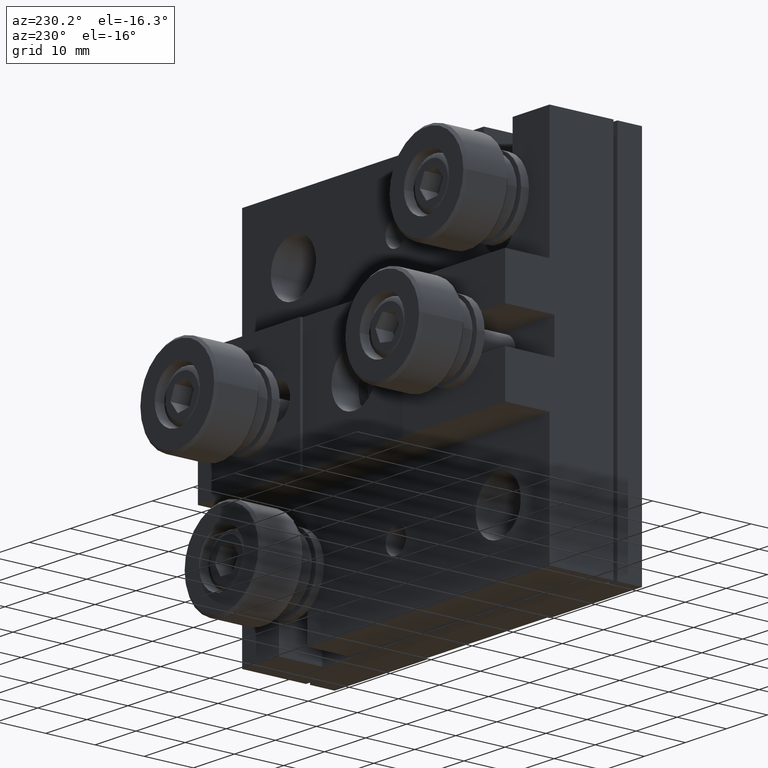
[diagram: clean part render]
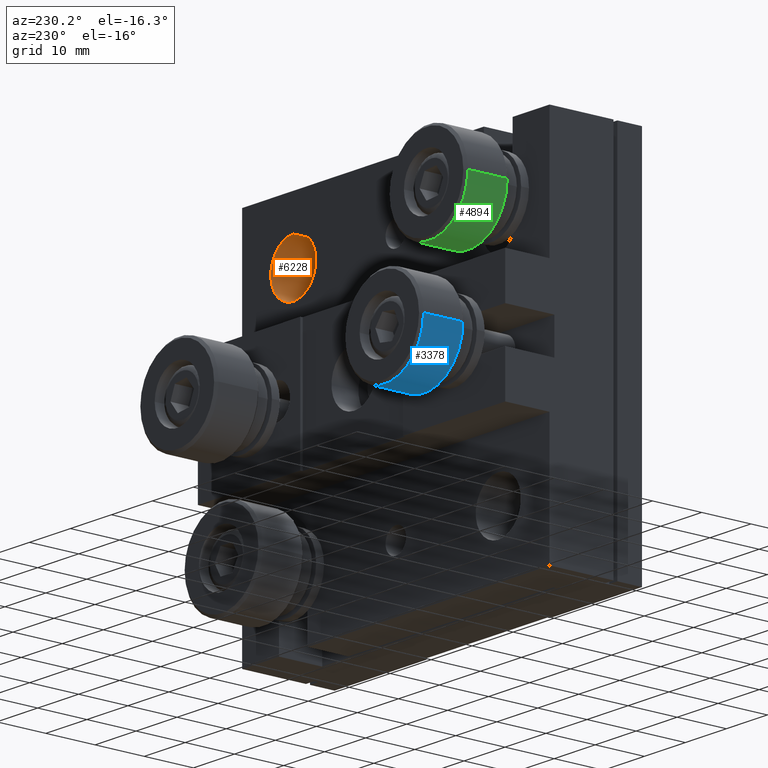
[diagram: same view with three faces highlighted in distinct colors, each labeled with its STEP entity id]
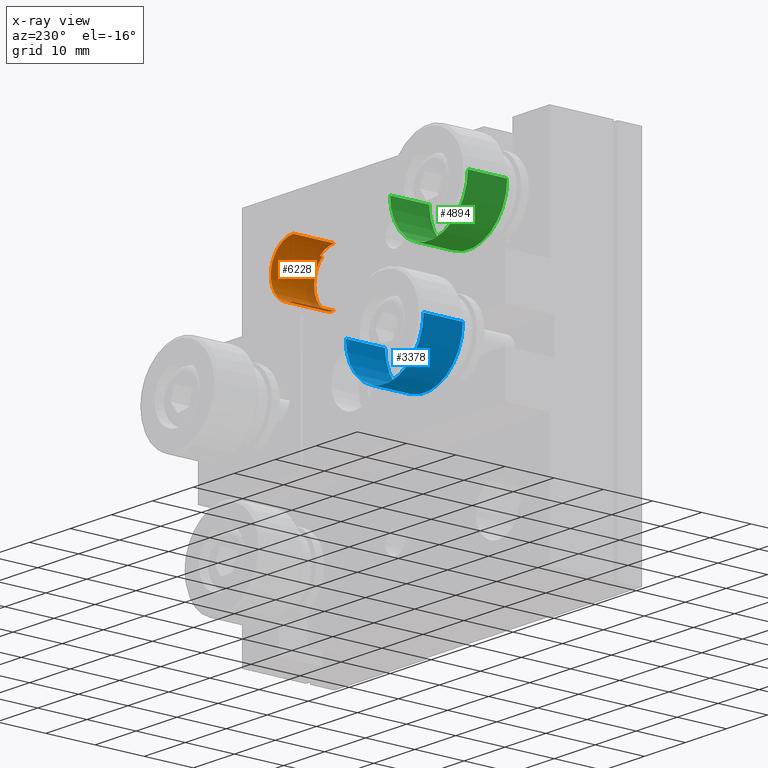
[diagram: x-ray of the same camera — body ghosted, the three highlighted faces saturated]
A machine part, auxiliary view with three faces highlighted in distinct colors.
The next image is the same camera in x-ray (body ghosted, the three faces saturated) — at least one of them is partly hidden behind the body in this view.
Their STEP definitions:

[orange] entity #6228 — the highlighted cylindrical surface (edge-blend (fillet) strip) has radius 5.5 mm, axis along (-0, 1, -0).
#6 = DIRECTION ( 'NONE',  ( -0.0000000000000000000, 1.000000000000000000, -0.0000000000000000000 ) ) ;
#10 = ORIENTED_EDGE ( 'NONE', *, *, #3842, .T. ) ;
#192 = CARTESIAN_POINT ( 'NONE',  ( 28.38646684831964600, 5.621071752951860600, 29.24264068711933000 ) ) ;
#218 = DIRECTION ( 'NONE',  ( -0.0000000000000000000, 1.000000000000000000, -0.0000000000000000000 ) ) ;
#275 = AXIS2_PLACEMENT_3D ( 'NONE', #1153, #6, #6223 ) ;
#1065 = EDGE_CURVE ( 'NONE', #5426, #2127, #4453, .T. ) ;
#1123 = EDGE_CURVE ( 'NONE', #2231, #3884, #3856, .T. ) ;
#1153 = CARTESIAN_POINT ( 'NONE',  ( 24.88646684831970600, 5.621071752951860600, 25.00000000000000000 ) ) ;
#1210 = DIRECTION ( 'NONE',  ( 0.0000000000000000000, 0.0000000000000000000, -1.000000000000000000 ) ) ;
#1263 = CARTESIAN_POINT ( 'NONE',  ( 24.88646684831970600, 5.621071752951860600, 19.50000000000000400 ) ) ;
#1293 = VERTEX_POINT ( 'NONE', #3171 ) ;
#1351 = DIRECTION ( 'NONE',  ( -0.0000000000000000000, 1.000000000000000000, -0.0000000000000000000 ) ) ;
#1563 = AXIS2_PLACEMENT_3D ( 'NONE', #3737, #5743, #1210 ) ;
#1742 = DIRECTION ( 'NONE',  ( 0.0000000000000000000, -1.000000000000000000, 0.0000000000000000000 ) ) ;
#1764 = EDGE_CURVE ( 'NONE', #4466, #2231, #3212, .T. ) ;
#1780 = ORIENTED_EDGE ( 'NONE', *, *, #2619, .F. ) ;
#1948 = LINE ( 'NONE', #1263, #2996 ) ;
#1995 = CARTESIAN_POINT ( 'NONE',  ( 28.38646684831963900, 5.621071752951860600, 20.75735931288066600 ) ) ;
#2096 = ORIENTED_EDGE ( 'NONE', *, *, #1764, .F. ) ;
#2127 = VERTEX_POINT ( 'NONE', #4060 ) ;
#2171 = CARTESIAN_POINT ( 'NONE',  ( 24.88646684831970600, -2.678928247048137900, 25.00000000000000000 ) ) ;
#2231 = VERTEX_POINT ( 'NONE', #3180 ) ;
#2252 = ORIENTED_EDGE ( 'NONE', *, *, #4977, .T. ) ;
#2359 = VERTEX_POINT ( 'NONE', #3241 ) ;
#2366 = CARTESIAN_POINT ( 'NONE',  ( 24.88646684831970600, 5.621071752951860600, 30.50000000000000000 ) ) ;
#2579 = DIRECTION ( 'NONE',  ( -0.0000000000000000000, 1.000000000000000000, -0.0000000000000000000 ) ) ;
#2619 = EDGE_CURVE ( 'NONE', #1293, #2359, #3839, .T. ) ;
#2669 = AXIS2_PLACEMENT_3D ( 'NONE', #3827, #5783, #5804 ) ;
#2996 = VECTOR ( 'NONE', #1351, 1000.000000000000000 ) ;
#3078 = ORIENTED_EDGE ( 'NONE', *, *, #1123, .F. ) ;
#3159 = CYLINDRICAL_SURFACE ( 'NONE', #275, 5.499999999999998200 ) ;
#3171 = CARTESIAN_POINT ( 'NONE',  ( 28.38646684831963900, -2.678928247048137900, 20.75735931288066600 ) ) ;
#3180 = CARTESIAN_POINT ( 'NONE',  ( 28.38646684831964600, -2.678928247048137900, 29.24264068711933000 ) ) ;
#3212 = CIRCLE ( 'NONE', #2669, 5.499999999999998200 ) ;
#3241 = CARTESIAN_POINT ( 'NONE',  ( 24.88646684831970600, -2.678928247048137900, 19.50000000000000400 ) ) ;
#3257 = CARTESIAN_POINT ( 'NONE',  ( 28.38646684831963900, -3.178928247048138400, 20.75735931288066600 ) ) ;
#3508 = LINE ( 'NONE', #1995, #6364 ) ;
#3692 = CARTESIAN_POINT ( 'NONE',  ( 24.88646684831970600, 5.621071752951859700, 30.50000000000000000 ) ) ;
#3737 = CARTESIAN_POINT ( 'NONE',  ( 24.88646684831970600, -3.178928247048138400, 25.00000000000000000 ) ) ;
#3783 = FACE_OUTER_BOUND ( 'NONE', #4378, .T. ) ;
#3827 = CARTESIAN_POINT ( 'NONE',  ( 24.88646684831970600, -2.678928247048137900, 25.00000000000000000 ) ) ;
#3839 = CIRCLE ( 'NONE', #6358, 5.499999999999998200 ) ;
#3842 = EDGE_CURVE ( 'NONE', #4231, #3884, #5529, .T. ) ;
#3856 = LINE ( 'NONE', #192, #4768 ) ;
#3884 = VERTEX_POINT ( 'NONE', #5718 ) ;
#4017 = ORIENTED_EDGE ( 'NONE', *, *, #1065, .T. ) ;
#4060 = CARTESIAN_POINT ( 'NONE',  ( 24.88646684831970600, 5.621071752951859700, 19.50000000000000400 ) ) ;
#4132 = DIRECTION ( 'NONE',  ( 0.0000000000000000000, 1.000000000000000000, 0.0000000000000000000 ) ) ;
#4196 = DIRECTION ( 'NONE',  ( 0.0000000000000000000, 0.0000000000000000000, 1.000000000000000000 ) ) ;
#4231 = VERTEX_POINT ( 'NONE', #3257 ) ;
#4279 = DIRECTION ( 'NONE',  ( 0.0000000000000000000, 0.0000000000000000000, 1.000000000000000000 ) ) ;
#4378 = EDGE_LOOP ( 'NONE', ( #4781, #1780, #5005, #10, #3078, #2096, #2252, #4017 ) ) ;
#4453 = CIRCLE ( 'NONE', #5843, 5.499999999999998200 ) ;
#4466 = VERTEX_POINT ( 'NONE', #5808 ) ;
#4768 = VECTOR ( 'NONE', #1742, 1000.000000000000000 ) ;
#4769 = DIRECTION ( 'NONE',  ( -0.0000000000000000000, 1.000000000000000000, -0.0000000000000000000 ) ) ;
#4781 = ORIENTED_EDGE ( 'NONE', *, *, #6557, .F. ) ;
#4977 = EDGE_CURVE ( 'NONE', #4466, #5426, #5371, .T. ) ;
#5005 = ORIENTED_EDGE ( 'NONE', *, *, #5153, .F. ) ;
#5153 = EDGE_CURVE ( 'NONE', #4231, #1293, #3508, .T. ) ;
#5298 = CARTESIAN_POINT ( 'NONE',  ( 24.88646684831970600, 5.621071752951859700, 25.00000000000000000 ) ) ;
#5371 = LINE ( 'NONE', #2366, #6114 ) ;
#5426 = VERTEX_POINT ( 'NONE', #3692 ) ;
#5529 = CIRCLE ( 'NONE', #1563, 5.499999999999998200 ) ;
#5718 = CARTESIAN_POINT ( 'NONE',  ( 28.38646684831964600, -3.178928247048138400, 29.24264068711933000 ) ) ;
#5743 = DIRECTION ( 'NONE',  ( 0.0000000000000000000, -1.000000000000000000, 0.0000000000000000000 ) ) ;
#5783 = DIRECTION ( 'NONE',  ( 0.0000000000000000000, 1.000000000000000000, 0.0000000000000000000 ) ) ;
#5804 = DIRECTION ( 'NONE',  ( 0.0000000000000000000, 0.0000000000000000000, 1.000000000000000000 ) ) ;
#5808 = CARTESIAN_POINT ( 'NONE',  ( 24.88646684831970600, -2.678928247048137900, 30.50000000000000000 ) ) ;
#5843 = AXIS2_PLACEMENT_3D ( 'NONE', #5298, #218, #4279 ) ;
#6114 = VECTOR ( 'NONE', #4769, 1000.000000000000000 ) ;
#6223 = DIRECTION ( 'NONE',  ( 0.0000000000000000000, 0.0000000000000000000, 1.000000000000000000 ) ) ;
#6228 = ADVANCED_FACE ( 'NONE', ( #3783 ), #3159, .F. ) ;
#6358 = AXIS2_PLACEMENT_3D ( 'NONE', #2171, #4132, #4196 ) ;
#6364 = VECTOR ( 'NONE', #2579, 1000.000000000000000 ) ;
#6557 = EDGE_CURVE ( 'NONE', #2359, #2127, #1948, .T. ) ;

[blue] entity #3378 — the highlighted cylindrical surface (partial cylindrical patch) has radius 9.5 mm, axis along (-0, 1, -0).
#45 = EDGE_CURVE ( 'NONE', #2412, #5164, #793, .T. ) ;
#119 = VERTEX_POINT ( 'NONE', #244 ) ;
#185 = FACE_OUTER_BOUND ( 'NONE', #2436, .T. ) ;
#244 = CARTESIAN_POINT ( 'NONE',  ( -34.61353315168040700, 20.72107175295188600, 5.119966596414945200E-015 ) ) ;
#290 = CARTESIAN_POINT ( 'NONE',  ( -15.61353315168021500, 16.22107175295186800, 5.469789321393317900E-015 ) ) ;
#576 = ORIENTED_EDGE ( 'NONE', *, *, #5130, .T. ) ;
#774 = AXIS2_PLACEMENT_3D ( 'NONE', #1300, #6467, #2313 ) ;
#793 = CIRCLE ( 'NONE', #2019, 9.500000000000074600 ) ;
#871 = ORIENTED_EDGE ( 'NONE', *, *, #1763, .T. ) ;
#1088 = VECTOR ( 'NONE', #1271, 1000.000000000000000 ) ;
#1260 = CARTESIAN_POINT ( 'NONE',  ( -25.11353315168033300, 28.72107175295188200, 2.924967826520067400E-015 ) ) ;
#1271 = DIRECTION ( 'NONE',  ( -1.484610486484067300E-016, 1.000000000000000000, -2.879626694613709100E-016 ) ) ;
#1300 = CARTESIAN_POINT ( 'NONE',  ( -25.11353315168029000, 16.22107175295186800, 6.524501194787215800E-015 ) ) ;
#1721 = DIRECTION ( 'NONE',  ( 1.484610486484067300E-016, -1.000000000000000000, 2.879626694613709100E-016 ) ) ;
#1763 = EDGE_CURVE ( 'NONE', #5432, #119, #3609, .T. ) ;
#1976 = EDGE_CURVE ( 'NONE', #5432, #5164, #2490, .T. ) ;
#1978 = CARTESIAN_POINT ( 'NONE',  ( -34.61353315168036500, 16.22107175295186800, 6.415798608991119600E-015 ) ) ;
#2019 = AXIS2_PLACEMENT_3D ( 'NONE', #1260, #1721, #6360 ) ;
#2020 = DIRECTION ( 'NONE',  ( -1.484610486484067300E-016, 1.000000000000000000, -2.879626694613709100E-016 ) ) ;
#2313 = DIRECTION ( 'NONE',  ( 1.000000000000000000, 0.0000000000000000000, -1.110223024625147200E-016 ) ) ;
#2412 = VERTEX_POINT ( 'NONE', #6508 ) ;
#2416 = CYLINDRICAL_SURFACE ( 'NONE', #774, 9.500000000000074600 ) ;
#2436 = EDGE_LOOP ( 'NONE', ( #871, #576, #5625, #4357 ) ) ;
#2490 = LINE ( 'NONE', #290, #1088 ) ;
#2493 = CARTESIAN_POINT ( 'NONE',  ( -15.61353315168025800, 28.72107175295188200, 1.870255953126169500E-015 ) ) ;
#2689 = DIRECTION ( 'NONE',  ( -1.000000000000000000, 0.0000000000000000000, 1.110223024625147200E-016 ) ) ;
#2938 = LINE ( 'NONE', #1978, #3961 ) ;
#3175 = CARTESIAN_POINT ( 'NONE',  ( -15.61353315168025600, 20.72107175295188600, 4.173957308817142700E-015 ) ) ;
#3378 = ADVANCED_FACE ( 'NONE', ( #185 ), #2416, .T. ) ;
#3609 = CIRCLE ( 'NONE', #4264, 9.500000000000074600 ) ;
#3961 = VECTOR ( 'NONE', #2020, 1000.000000000000000 ) ;
#4264 = AXIS2_PLACEMENT_3D ( 'NONE', #5709, #5636, #2689 ) ;
#4357 = ORIENTED_EDGE ( 'NONE', *, *, #1976, .F. ) ;
#5130 = EDGE_CURVE ( 'NONE', #119, #2412, #2938, .T. ) ;
#5164 = VERTEX_POINT ( 'NONE', #2493 ) ;
#5432 = VERTEX_POINT ( 'NONE', #3175 ) ;
#5625 = ORIENTED_EDGE ( 'NONE', *, *, #45, .T. ) ;
#5636 = DIRECTION ( 'NONE',  ( -1.484610486484067300E-016, 1.000000000000000000, -2.879626694613709100E-016 ) ) ;
#5709 = CARTESIAN_POINT ( 'NONE',  ( -25.11353315168033300, 20.72107175295188600, 5.228669182211041400E-015 ) ) ;
#6360 = DIRECTION ( 'NONE',  ( 1.000000000000000000, 0.0000000000000000000, -1.110223024625146800E-016 ) ) ;
#6467 = DIRECTION ( 'NONE',  ( -1.484610486484067300E-016, 1.000000000000000000, -2.879626694613709100E-016 ) ) ;
#6508 = CARTESIAN_POINT ( 'NONE',  ( -34.61353315168032900, 28.72107175295188200, 3.968115918569459300E-015 ) ) ;

[green] entity #4894 — the highlighted cylindrical surface (partial cylindrical patch) has radius 9.5 mm, axis along (0, 1, 0).
#80 = EDGE_CURVE ( 'NONE', #5821, #607, #5204, .T. ) ;
#307 = CARTESIAN_POINT ( 'NONE',  ( -25.11353315168028300, 19.72107175295187500, 25.00000000000000400 ) ) ;
#326 = EDGE_CURVE ( 'NONE', #3629, #607, #4850, .T. ) ;
#492 = ORIENTED_EDGE ( 'NONE', *, *, #80, .F. ) ;
#607 = VERTEX_POINT ( 'NONE', #1711 ) ;
#761 = DIRECTION ( 'NONE',  ( 3.086856409163671800E-031, 1.000000000000000000, 2.442292799147333100E-016 ) ) ;
#800 = DIRECTION ( 'NONE',  ( -1.000000000000000000, 0.0000000000000000000, 0.0000000000000000000 ) ) ;
#873 = DIRECTION ( 'NONE',  ( 3.086856409163671800E-031, 1.000000000000000000, 2.442292799147333100E-016 ) ) ;
#1636 = CARTESIAN_POINT ( 'NONE',  ( -15.61353315168021200, 11.72107175295187700, 25.00000000000000400 ) ) ;
#1711 = CARTESIAN_POINT ( 'NONE',  ( -15.61353315168028300, 19.72107175295187500, 25.00000000000000700 ) ) ;
#2031 = CARTESIAN_POINT ( 'NONE',  ( -34.61353315168035000, 19.72107175295187500, 25.00000000000000400 ) ) ;
#2336 = CARTESIAN_POINT ( 'NONE',  ( -34.61353315168035000, 11.72107175295187700, 25.00000000000000000 ) ) ;
#2670 = AXIS2_PLACEMENT_3D ( 'NONE', #6528, #873, #6031 ) ;
#2738 = AXIS2_PLACEMENT_3D ( 'NONE', #3368, #761, #4352 ) ;
#2746 = AXIS2_PLACEMENT_3D ( 'NONE', #307, #4406, #800 ) ;
#2763 = DIRECTION ( 'NONE',  ( 3.086856409163671800E-031, 1.000000000000000000, 2.442292799147333100E-016 ) ) ;
#2942 = CIRCLE ( 'NONE', #2738, 9.500000000000071100 ) ;
#3022 = VECTOR ( 'NONE', #5154, 1000.000000000000000 ) ;
#3309 = CARTESIAN_POINT ( 'NONE',  ( -15.61353315168025100, 7.221071752951859300, 25.00000000000000400 ) ) ;
#3329 = ORIENTED_EDGE ( 'NONE', *, *, #5224, .T. ) ;
#3368 = CARTESIAN_POINT ( 'NONE',  ( -25.11353315168028300, 11.72107175295187700, 25.00000000000000000 ) ) ;
#3491 = EDGE_CURVE ( 'NONE', #5821, #4334, #2942, .T. ) ;
#3629 = VERTEX_POINT ( 'NONE', #2031 ) ;
#3946 = ORIENTED_EDGE ( 'NONE', *, *, #3491, .T. ) ;
#3952 = CYLINDRICAL_SURFACE ( 'NONE', #2670, 9.500000000000071100 ) ;
#4334 = VERTEX_POINT ( 'NONE', #2336 ) ;
#4337 = VECTOR ( 'NONE', #2763, 1000.000000000000000 ) ;
#4352 = DIRECTION ( 'NONE',  ( 1.000000000000000000, 0.0000000000000000000, 0.0000000000000000000 ) ) ;
#4406 = DIRECTION ( 'NONE',  ( -3.086856409163671800E-031, -1.000000000000000000, -2.442292799147333100E-016 ) ) ;
#4850 = CIRCLE ( 'NONE', #2746, 9.500000000000067500 ) ;
#4880 = ORIENTED_EDGE ( 'NONE', *, *, #326, .T. ) ;
#4894 = ADVANCED_FACE ( 'NONE', ( #6349 ), #3952, .T. ) ;
#5154 = DIRECTION ( 'NONE',  ( 3.086856409163671800E-031, 1.000000000000000000, 2.442292799147333100E-016 ) ) ;
#5204 = LINE ( 'NONE', #3309, #4337 ) ;
#5224 = EDGE_CURVE ( 'NONE', #4334, #3629, #5946, .T. ) ;
#5821 = VERTEX_POINT ( 'NONE', #1636 ) ;
#5946 = LINE ( 'NONE', #6117, #3022 ) ;
#6031 = DIRECTION ( 'NONE',  ( -1.000000000000000000, 0.0000000000000000000, 0.0000000000000000000 ) ) ;
#6117 = CARTESIAN_POINT ( 'NONE',  ( -34.61353315168039300, 7.221071752951859300, 25.00000000000000000 ) ) ;
#6252 = EDGE_LOOP ( 'NONE', ( #492, #3946, #3329, #4880 ) ) ;
#6349 = FACE_OUTER_BOUND ( 'NONE', #6252, .T. ) ;
#6528 = CARTESIAN_POINT ( 'NONE',  ( -25.11353315168032200, 7.221071752951859300, 25.00000000000000000 ) ) ;